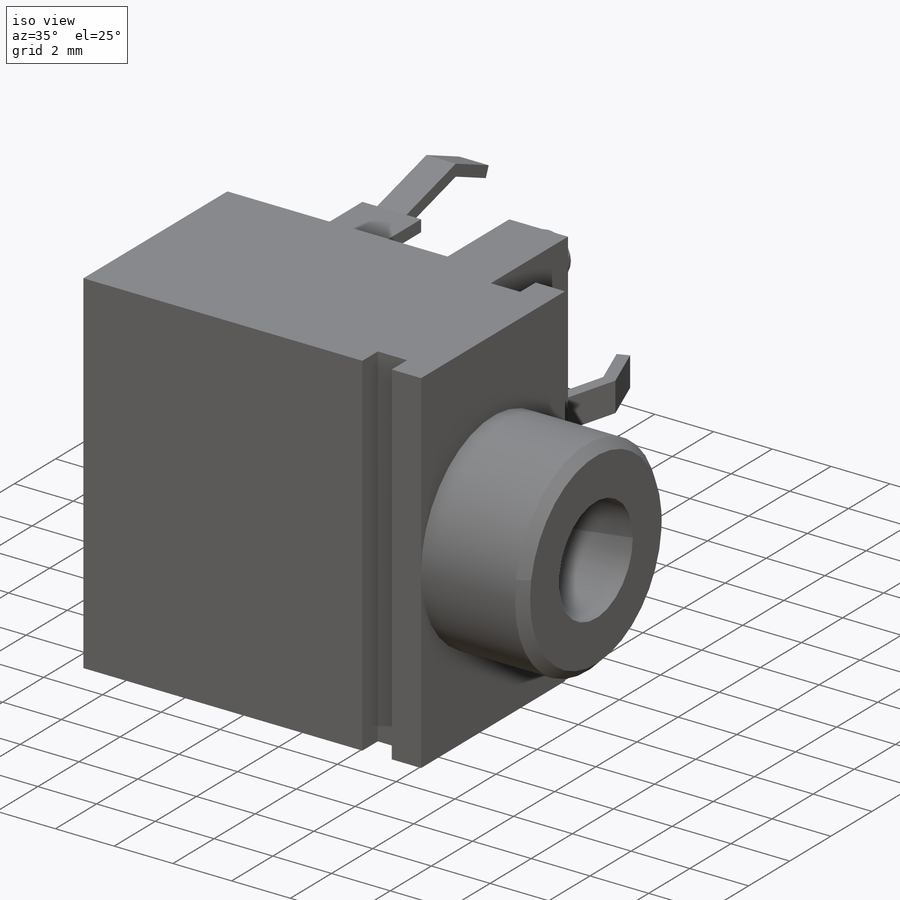
[diagram: iso view]
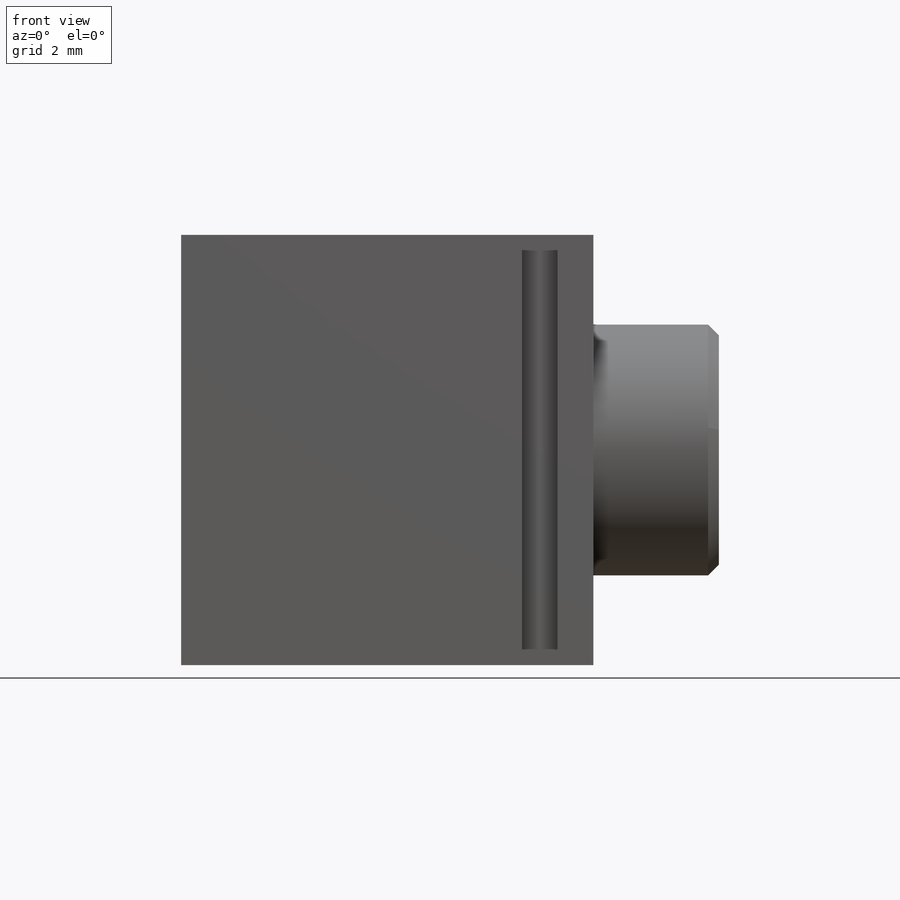
[diagram: front view]
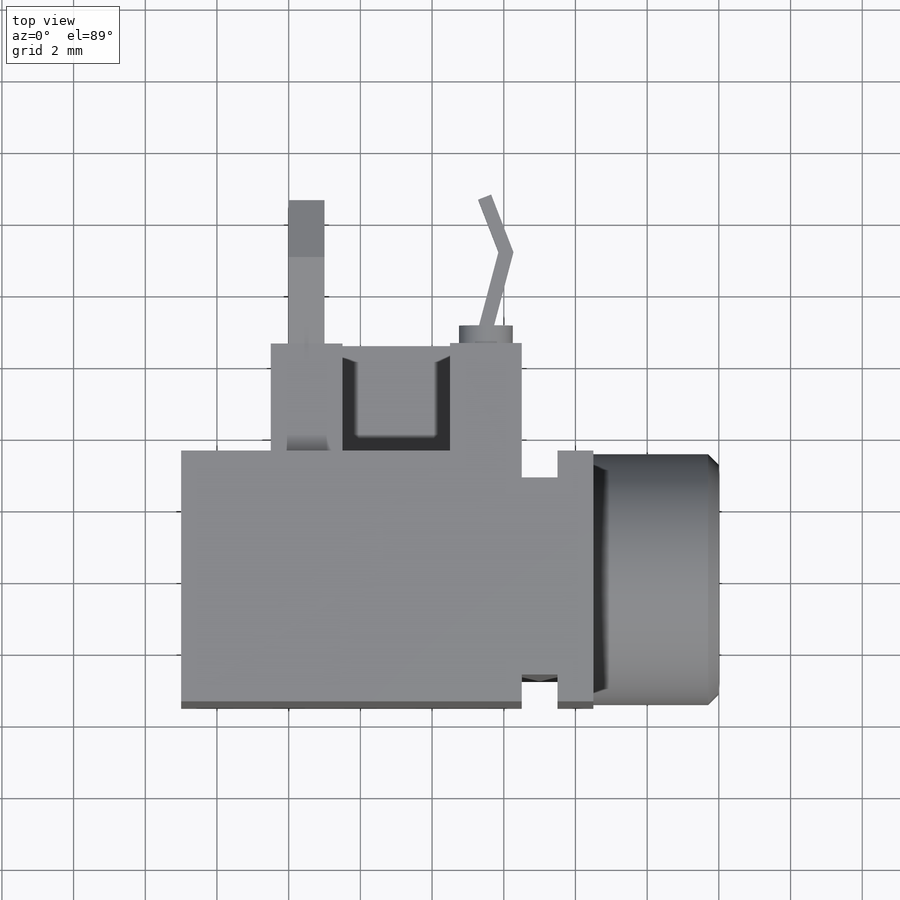
[diagram: top view]
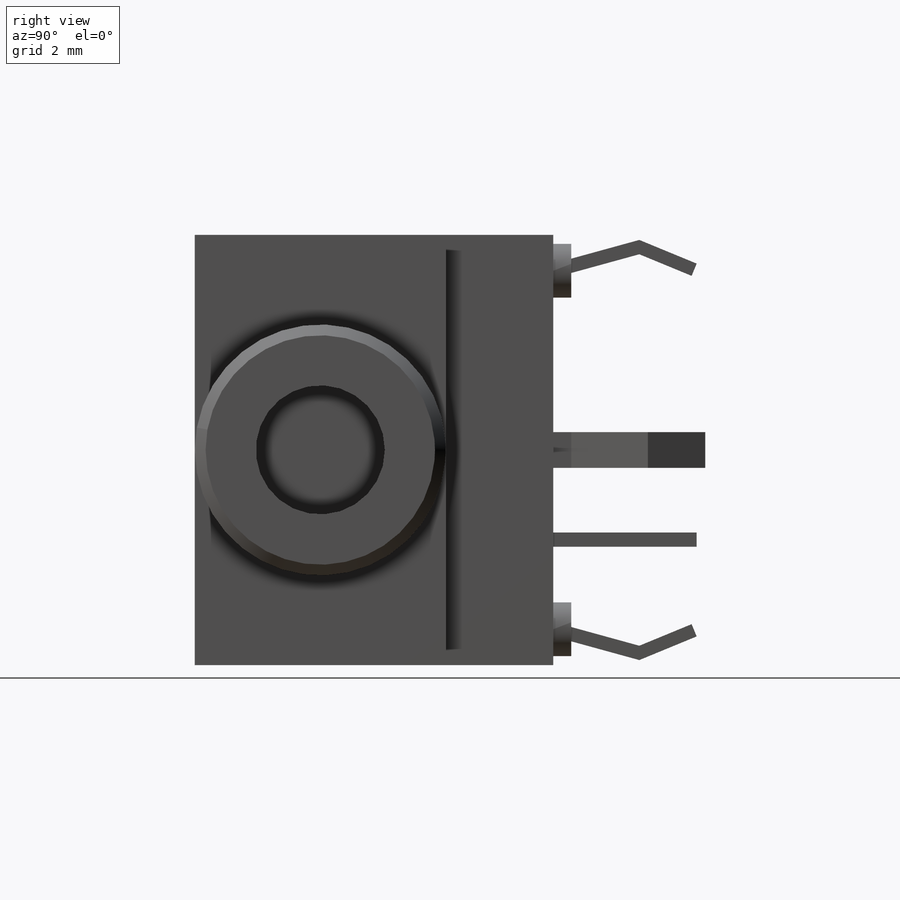
[diagram: right view]
SOLIDWORKS PART (.sldprt)
format: sldprt  version: not decoded by parser v0  size: 444,928 bytes
history: native  units: mm
features: sketch x21, extrude x11, plane x7, cut_extrude x5, revolve x3, material x1, hole x1, chamfer x1, mirror x1 (+9 scaffold rows collapsed)
feature tree (60):
  scaffold x9  (default folders/planes/origin — collapsed)
  material  "Material <not specified>"
  plane  "Plano frontal"
  plane  "Plano superior"
  plane  "Plano direito"
  plane  "Plano1"
  sketch  "Esboço1"
  extrude  "Ressalto-extrusão1"  Depth=7mm
  sketch  "Esboço2"
  cut_extrude  "Corte-extrusão1"  Depth=12mm
  sketch  "Esboço3"
  extrude  "Ressalto-extrusão2"  Depth=3.75mm
  sketch  "Esboço4"
  cut_extrude  "Corte-extrusão2"  Depth=12mm
  sketch  "Esboço5"
  extrude  "Ressalto-extrusão3"  Depth=7mm
  sketch  "Esboço6"
  cut_extrude  "Corte-extrusão3"  Depth=0.4mm
  sketch  "Esboço7"
  cut_extrude  "Corte-extrusão4"  Depth=0.4mm
  sketch  "Esboço8"
  extrude  "Ressalto-extrusão4"  Depth=3mm
  sketch  "Esboço9"
  cut_extrude  "Corte-extrusão5"  Depth=12mm
  sketch  "Esboço10"
  extrude  "Ressalto-extrusão5"  Depth=3mm
  sketch  "Esboço11"
  extrude  "Ressalto-extrusão6"  Depth=3mm
  sketch  "Esboço12"
  extrude  "Ressalto-extrusão7"  Depth=3mm
  sketch  "Esboço13"
  extrude  "Ressalto-extrusão8"  Depth=0.5mm
  plane  "Plano2"  Offset=5mm
  sketch  "Esboço14"
  revolve  "Revolução1"  Angle=360deg
  plane  "Plano3"  Offset=5mm
  sketch  "Esboço15"
  revolve  "Revolução2"  Angle=360deg
  plane  "Plano4"  Offset=3.5mm
  sketch  "Esboço16"
  revolve  "Revolução3"  Angle=360deg
  hole  "Furo de diâmetro Ø3.6 (3.6)1"  Diameter=3.6mm Depth=3.5mm
  sketch  "Esboço18"
  sketch  "Esboço17"  dims[hole-wizard template sketch: 46 standard entries collapsed; hole parameters kept: c15.Hole Dia.=3.6mm c15.Hole Depth=3.5mm c15.D3=~14.816244mm c15.Drill Angle=180.0deg]
  chamfer  "Chanfro1"  Distance=0.3mm Angle=45deg
  sketch  "Esboço19"  dims[D1=1.0mm D2=0.43mm D3=0.79mm D4=0.5mm]
  extrude  "Ressalto-extrusão9"  Depth=0.5mm
  sketch  "Esboço20"  dims[D1=2.15mm D2=0.57mm D3=1.6mm D4=0.62mm D5=~0.328499mm]
  extrude  "Ressalto-extrusão10"  Depth=1mm
  sketch  "Esboço21"  dims[D1=2.4mm D2=1.6mm D3=0.66mm D4=0.66mm]
  extrude  "Ressalto-extrusão11"  Depth=1mm
  mirror  "Espelhar1"
decode coverage: 25 of 43 modeling features carry decoded parameters
note: ~ marks probable driven/reference dimensions
note: suppression state not decoded; provenance and decode notes live in map.json
